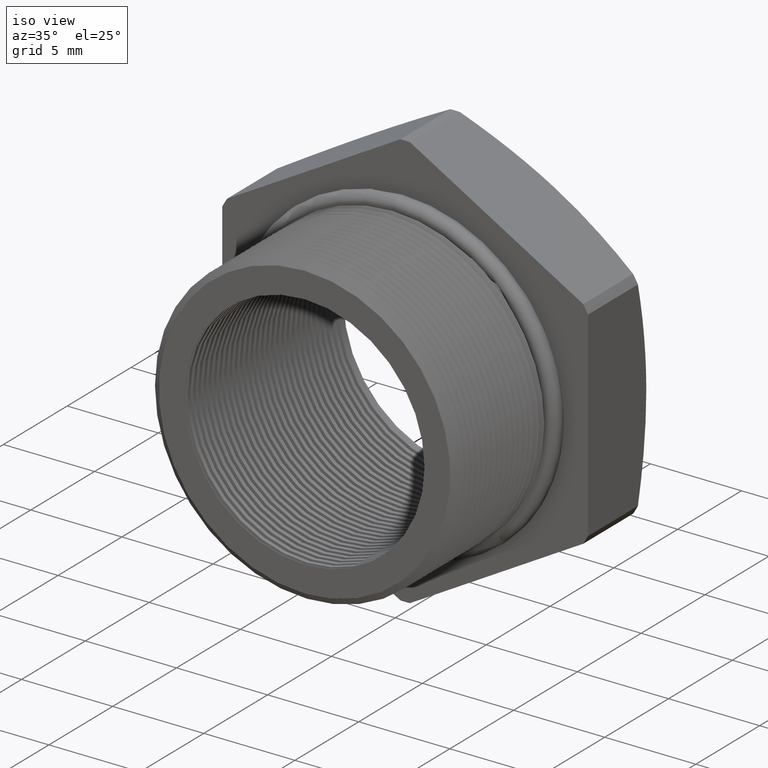
[diagram: clean part render]
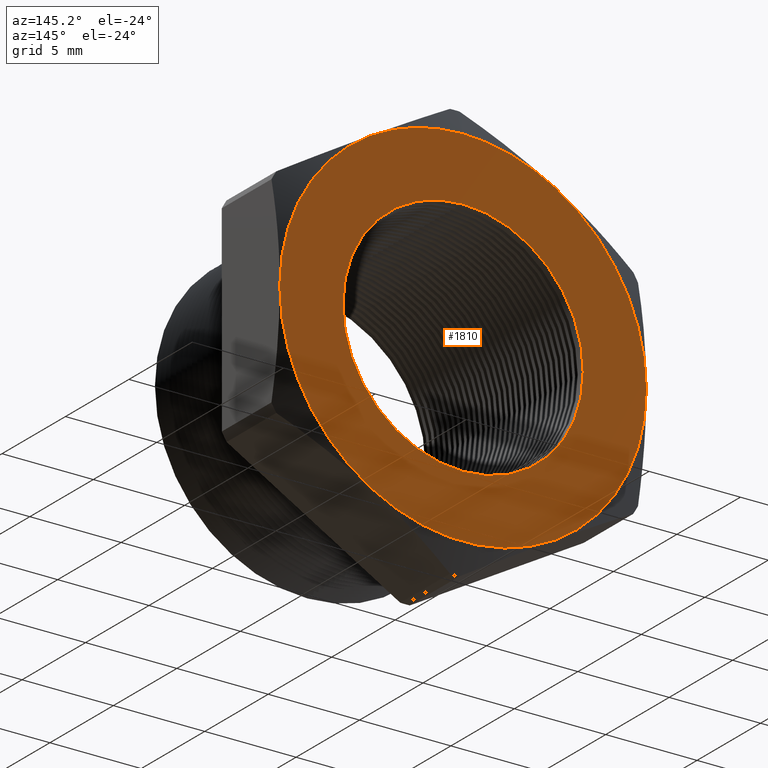
[diagram: tour spotlight — one face highlighted and labeled with its STEP entity id]
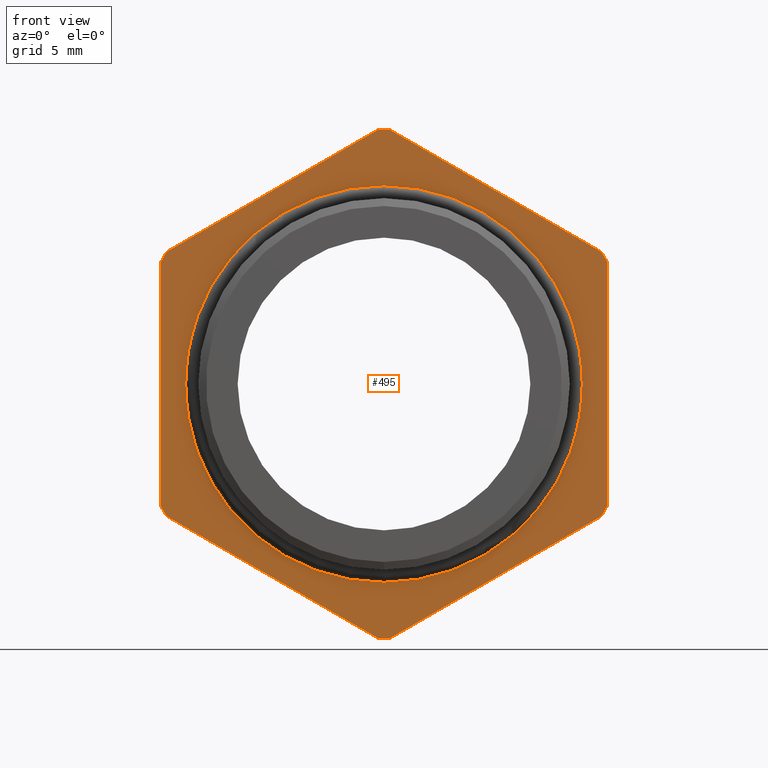
[diagram: tour spotlight — one face highlighted and labeled with its STEP entity id]
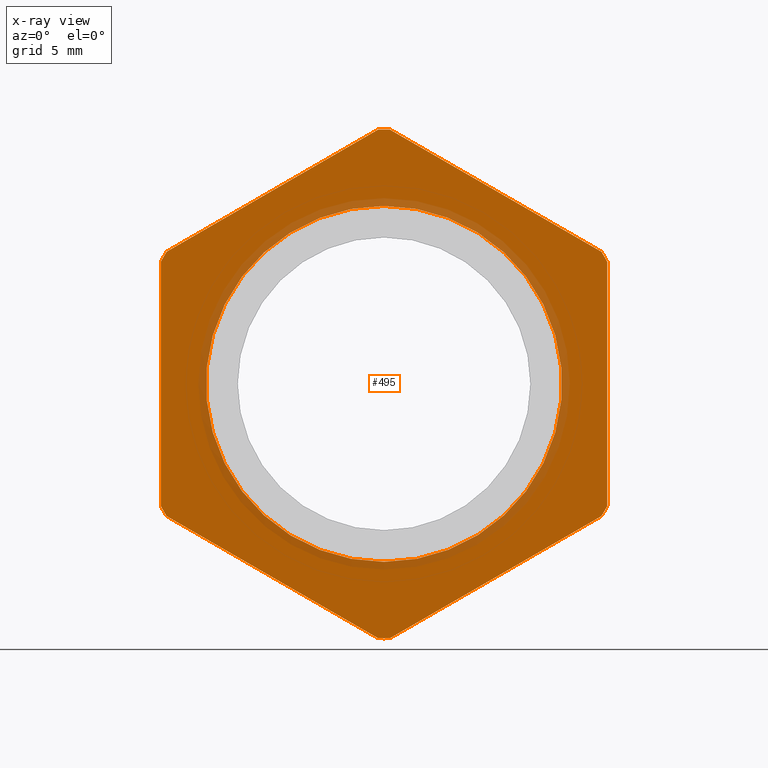
[diagram: x-ray of the same camera — body ghosted, this tour face saturated]
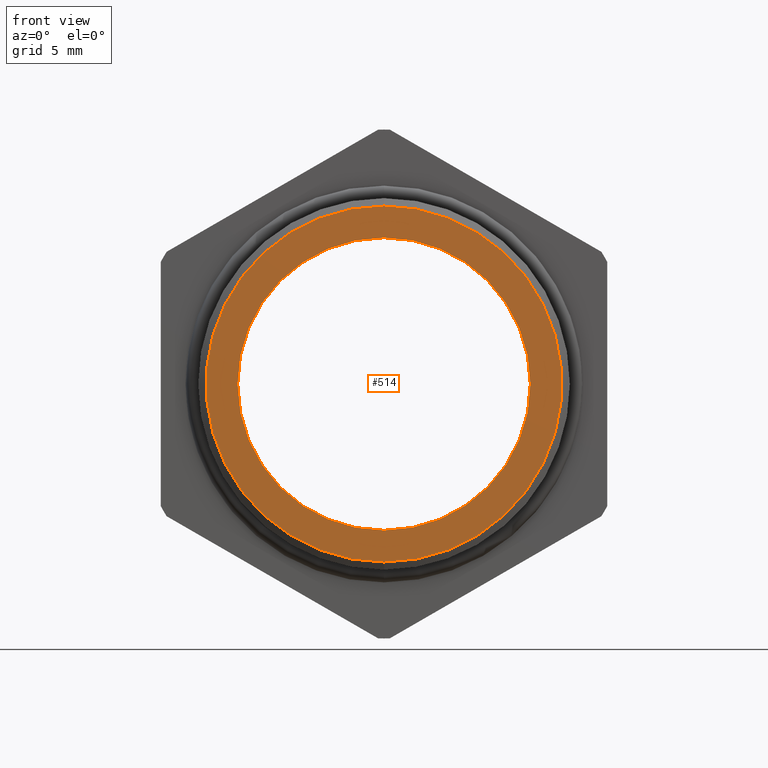
[diagram: tour spotlight — one face highlighted and labeled with its STEP entity id]
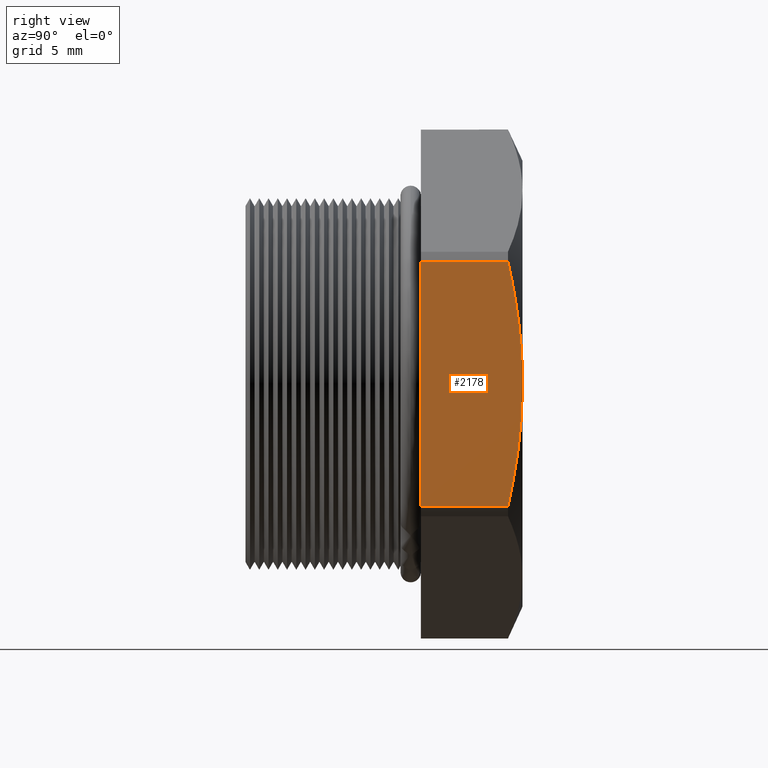
[diagram: tour spotlight — one face highlighted and labeled with its STEP entity id]
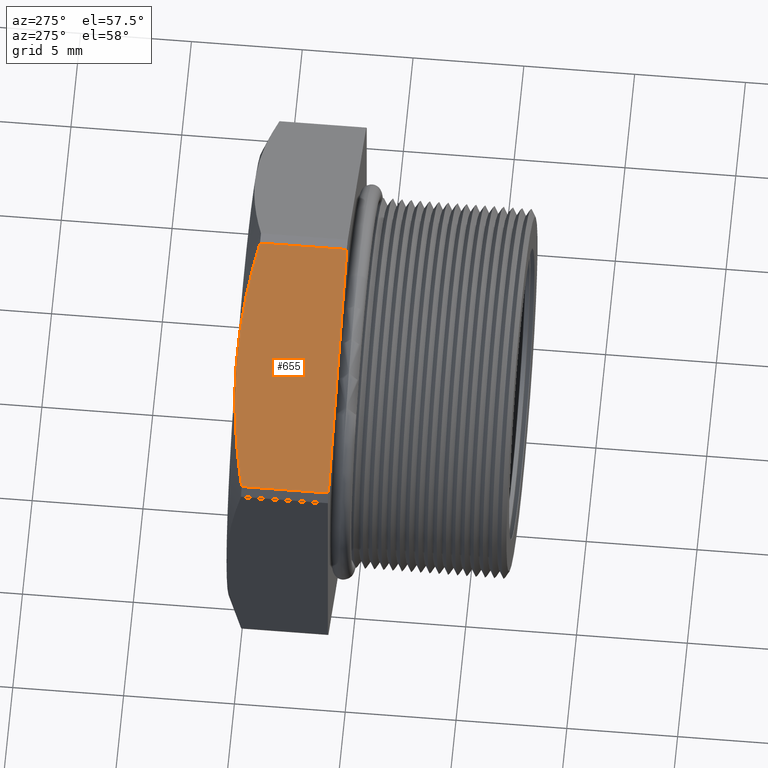
[diagram: tour spotlight — one face highlighted and labeled with its STEP entity id]
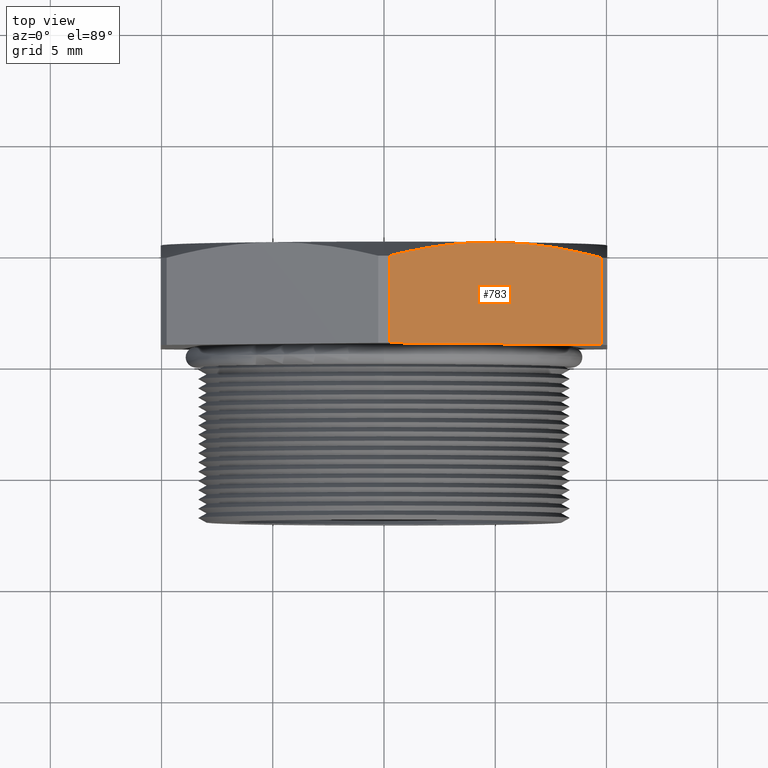
[diagram: tour spotlight — one face highlighted and labeled with its STEP entity id]
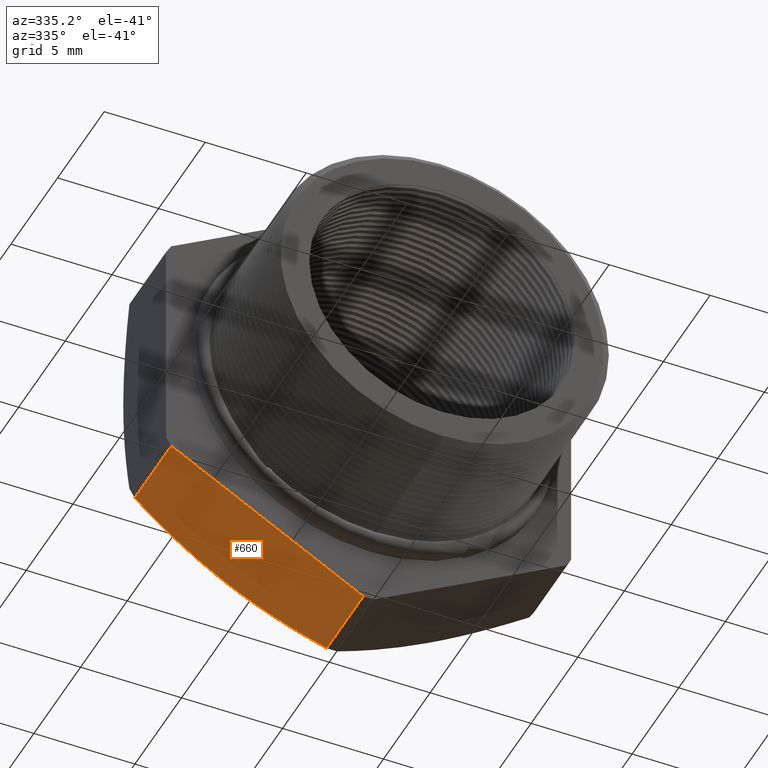
[diagram: tour spotlight — one face highlighted and labeled with its STEP entity id]
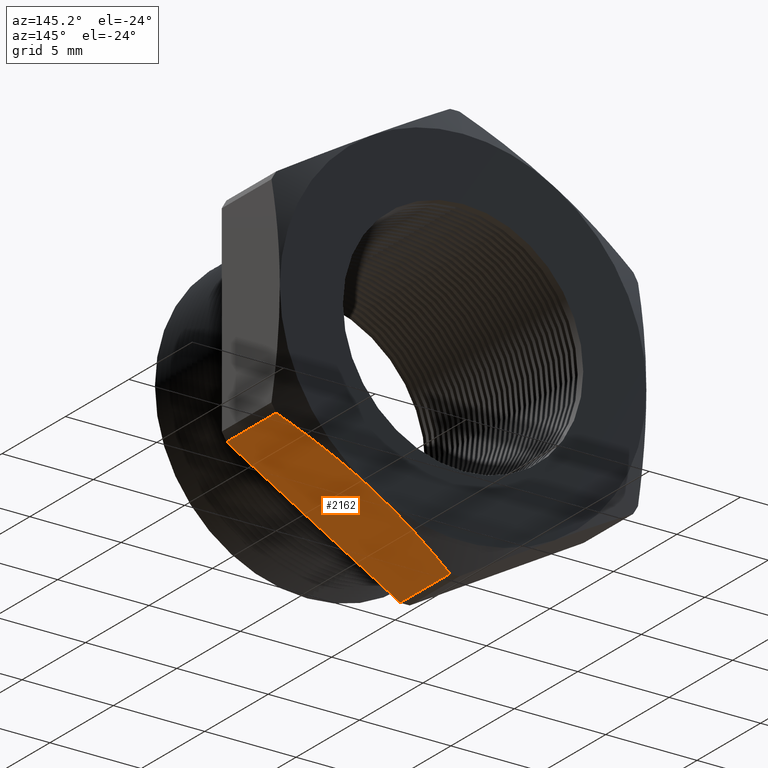
[diagram: tour spotlight — one face highlighted and labeled with its STEP entity id]
A machine part: a face-by-face anatomy tour. The part has 313 B-rep faces; the first image is the clean iso view, then the 8 largest visible faces are spotlighted one at a time (largest first), each with its STEP entity span.

Face 1 — auxiliary view, entity #1810. In plain terms, the highlighted planar face has unit normal (0, 1, 0).
Definition (entity closure, byte-faithful):
#715 = EDGE_CURVE ( 'NONE', #716, #1976, #4110, .T. ) ;
#716 = VERTEX_POINT ( 'NONE', #4105 ) ;
#717 = ORIENTED_EDGE ( 'NONE', *, *, #1975, .T. ) ;
#718 = ORIENTED_EDGE ( 'NONE', *, *, #719, .T. ) ;
#719 = EDGE_CURVE ( 'NONE', #1977, #720, #4104, .T. ) ;
#720 = VERTEX_POINT ( 'NONE', #4099 ) ;
#721 = ORIENTED_EDGE ( 'NONE', *, *, #722, .T. ) ;
#722 = EDGE_CURVE ( 'NONE', #720, #723, #4097, .T. ) ;
#723 = VERTEX_POINT ( 'NONE', #4098 ) ;
#724 = ORIENTED_EDGE ( 'NONE', *, *, #725, .T. ) ;
#725 = EDGE_CURVE ( 'NONE', #723, #726, #4092, .T. ) ;
#726 = VERTEX_POINT ( 'NONE', #4151 ) ;
#727 = ORIENTED_EDGE ( 'NONE', *, *, #728, .T. ) ;
#728 = EDGE_CURVE ( 'NONE', #726, #729, #4150, .T. ) ;
#729 = VERTEX_POINT ( 'NONE', #4145 ) ;
#766 = ORIENTED_EDGE ( 'NONE', *, *, #767, .T. ) ;
#767 = EDGE_CURVE ( 'NONE', #729, #716, #4197, .T. ) ;
#1491 = EDGE_CURVE ( 'NONE', #1492, #1493, #5423, .T. ) ;
#1492 = VERTEX_POINT ( 'NONE', #5414 ) ;
#1493 = VERTEX_POINT ( 'NONE', #5413 ) ;
#1810 = ADVANCED_FACE ( 'NONE', ( #5963, #5962 ), #5969, .T. ) ;
#1811 = EDGE_LOOP ( 'NONE', ( #1812, #1814 ) ) ;
#1812 = ORIENTED_EDGE ( 'NONE', *, *, #1813, .T. ) ;
#1813 = EDGE_CURVE ( 'NONE', #1493, #1492, #6019, .T. ) ;
#1814 = ORIENTED_EDGE ( 'NONE', *, *, #1491, .T. ) ;
#1815 = EDGE_LOOP ( 'NONE', ( #1816, #717, #718, #721, #724, #727, #766 ) ) ;
#1816 = ORIENTED_EDGE ( 'NONE', *, *, #715, .T. ) ;
#1975 = EDGE_CURVE ( 'NONE', #1976, #1977, #6287, .T. ) ;
#1976 = VERTEX_POINT ( 'NONE', #6338 ) ;
#1977 = VERTEX_POINT ( 'NONE', #6337 ) ;
#4089 = DIRECTION ( 'NONE',  ( 0.0000000000000000000, 1.000000000000000000, 0.0000000000000000000 ) ) ;
#4090 = CARTESIAN_POINT ( 'NONE',  ( 0.0000000000000000000, 0.4075548905829479200, 0.0000000000000000000 ) ) ;
#4091 = AXIS2_PLACEMENT_3D ( 'NONE', #4090, #4089, #4152 ) ;
#4092 = CIRCLE ( 'NONE', #4091, 0.3949999999999999600 ) ;
#4093 = DIRECTION ( 'NONE',  ( 0.0000000000000000000, 0.0000000000000000000, 1.000000000000000000 ) ) ;
#4094 = DIRECTION ( 'NONE',  ( 0.0000000000000000000, 1.000000000000000000, 0.0000000000000000000 ) ) ;
#4095 = CARTESIAN_POINT ( 'NONE',  ( 0.0000000000000000000, 0.4075548905829479200, 0.0000000000000000000 ) ) ;
#4096 = AXIS2_PLACEMENT_3D ( 'NONE', #4095, #4094, #4093 ) ;
#4097 = CIRCLE ( 'NONE', #4096, 0.3949999999999999600 ) ;
#4098 = CARTESIAN_POINT ( 'NONE',  ( 0.1975000000000000100, 0.4075548905829479200, -0.3420800344948533600 ) ) ;
#4099 = CARTESIAN_POINT ( 'NONE',  ( 0.3949999999999999600, 0.4075548905829479200, 1.182924880895400300E-016 ) ) ;
#4100 = DIRECTION ( 'NONE',  ( 0.0000000000000000000, 0.0000000000000000000, 1.000000000000000000 ) ) ;
#4101 = DIRECTION ( 'NONE',  ( 0.0000000000000000000, 1.000000000000000000, 0.0000000000000000000 ) ) ;
#4102 = CARTESIAN_POINT ( 'NONE',  ( 0.0000000000000000000, 0.4075548905829479200, 0.0000000000000000000 ) ) ;
#4103 = AXIS2_PLACEMENT_3D ( 'NONE', #4102, #4101, #4100 ) ;
#4104 = CIRCLE ( 'NONE', #4103, 0.3949999999999999600 ) ;
#4105 = CARTESIAN_POINT ( 'NONE',  ( -0.1975000000000000100, 0.4075548905829479200, 0.3420800344948533600 ) ) ;
#4106 = DIRECTION ( 'NONE',  ( 0.0000000000000000000, 0.0000000000000000000, 1.000000000000000000 ) ) ;
#4107 = DIRECTION ( 'NONE',  ( 0.0000000000000000000, 1.000000000000000000, 0.0000000000000000000 ) ) ;
#4108 = CARTESIAN_POINT ( 'NONE',  ( 0.0000000000000000000, 0.4075548905829479200, 0.0000000000000000000 ) ) ;
#4109 = AXIS2_PLACEMENT_3D ( 'NONE', #4108, #4107, #4106 ) ;
#4110 = CIRCLE ( 'NONE', #4109, 0.3949999999999999600 ) ;
#4145 = CARTESIAN_POINT ( 'NONE',  ( -0.3949999999999999600, 0.4075548905829479200, 0.0000000000000000000 ) ) ;
#4146 = DIRECTION ( 'NONE',  ( 0.0000000000000000000, 0.0000000000000000000, 1.000000000000000000 ) ) ;
#4147 = DIRECTION ( 'NONE',  ( 0.0000000000000000000, 1.000000000000000000, 0.0000000000000000000 ) ) ;
#4148 = CARTESIAN_POINT ( 'NONE',  ( 0.0000000000000000000, 0.4075548905829479200, 0.0000000000000000000 ) ) ;
#4149 = AXIS2_PLACEMENT_3D ( 'NONE', #4148, #4147, #4146 ) ;
#4150 = CIRCLE ( 'NONE', #4149, 0.3949999999999999600 ) ;
#4151 = CARTESIAN_POINT ( 'NONE',  ( -0.1975000000000000900, 0.4075548905829479200, -0.3420800344948533000 ) ) ;
#4152 = DIRECTION ( 'NONE',  ( 0.0000000000000000000, 0.0000000000000000000, 1.000000000000000000 ) ) ;
#4193 = DIRECTION ( 'NONE',  ( 0.0000000000000000000, 0.0000000000000000000, 1.000000000000000000 ) ) ;
#4194 = DIRECTION ( 'NONE',  ( 0.0000000000000000000, 1.000000000000000000, 0.0000000000000000000 ) ) ;
#4195 = CARTESIAN_POINT ( 'NONE',  ( 0.0000000000000000000, 0.4075548905829479200, 0.0000000000000000000 ) ) ;
#4196 = AXIS2_PLACEMENT_3D ( 'NONE', #4195, #4194, #4193 ) ;
#4197 = CIRCLE ( 'NONE', #4196, 0.3949999999999999600 ) ;
#5413 = CARTESIAN_POINT ( 'NONE',  ( 0.0000000000000000000, 0.4075548905829479200, -0.2589880461203001900 ) ) ;
#5414 = CARTESIAN_POINT ( 'NONE',  ( 3.171688816986526800E-017, 0.4075548905829479200, 0.2589880461203001900 ) ) ;
#5415 = DIRECTION ( 'NONE',  ( 0.0000000000000000000, 0.0000000000000000000, -1.000000000000000000 ) ) ;
#5416 = DIRECTION ( 'NONE',  ( -0.0000000000000000000, -1.000000000000000000, -0.0000000000000000000 ) ) ;
#5417 = CARTESIAN_POINT ( 'NONE',  ( 0.0000000000000000000, 0.4075548905829479200, 0.0000000000000000000 ) ) ;
#5418 = AXIS2_PLACEMENT_3D ( 'NONE', #5417, #5416, #5415 ) ;
#5423 = CIRCLE ( 'NONE', #5418, 0.2589880461203001900 ) ;
#5962 = FACE_OUTER_BOUND ( 'NONE', #1815, .T. ) ;
#5963 = FACE_BOUND ( 'NONE', #1811, .T. ) ;
#5964 = AXIS2_PLACEMENT_3D ( 'NONE', #6023, #6022, #6021 ) ;
#5969 = PLANE ( 'NONE',  #5964 ) ;
#6016 = DIRECTION ( 'NONE',  ( 0.0000000000000000000, 0.0000000000000000000, -1.000000000000000000 ) ) ;
#6017 = DIRECTION ( 'NONE',  ( -0.0000000000000000000, -1.000000000000000000, -0.0000000000000000000 ) ) ;
#6018 = AXIS2_PLACEMENT_3D ( 'NONE', #6024, #6017, #6016 ) ;
#6019 = CIRCLE ( 'NONE', #6018, 0.2589880461203001900 ) ;
#6021 = DIRECTION ( 'NONE',  ( 0.0000000000000000000, -0.0000000000000000000, 1.000000000000000000 ) ) ;
#6022 = DIRECTION ( 'NONE',  ( 0.0000000000000000000, 1.000000000000000000, 0.0000000000000000000 ) ) ;
#6023 = CARTESIAN_POINT ( 'NONE',  ( 0.4502999999999999800, 0.4075548905829479200, 0.0000000000000000000 ) ) ;
#6024 = CARTESIAN_POINT ( 'NONE',  ( 0.0000000000000000000, 0.4075548905829479200, 0.0000000000000000000 ) ) ;
#6280 = CARTESIAN_POINT ( 'NONE',  ( 0.0000000000000000000, 0.4075548905829479200, 0.0000000000000000000 ) ) ;
#6281 = AXIS2_PLACEMENT_3D ( 'NONE', #6280, #6340, #6339 ) ;
#6287 = CIRCLE ( 'NONE', #6281, 0.3949999999999999600 ) ;
#6337 = CARTESIAN_POINT ( 'NONE',  ( 0.1975000000000001800, 0.4075548905829479700, 0.3420800344948533000 ) ) ;
#6338 = CARTESIAN_POINT ( 'NONE',  ( 0.0000000000000000000, 0.4075548905829479200, 0.3949999999999999600 ) ) ;
#6339 = DIRECTION ( 'NONE',  ( 0.0000000000000000000, 0.0000000000000000000, 1.000000000000000000 ) ) ;
#6340 = DIRECTION ( 'NONE',  ( 0.0000000000000000000, 1.000000000000000000, 0.0000000000000000000 ) ) ;

Face 2 — front view, entity #495. An x-ray twin of the same camera follows (body ghosted, this face saturated) — the face is partly hidden behind the body. In plain terms, the highlighted planar face has unit normal (0, -1, -0).
Definition (entity closure, byte-faithful):
#401 = EDGE_CURVE ( 'NONE', #763, #706, #3583, .T. ) ;
#473 = EDGE_CURVE ( 'NONE', #1476, #1475, #3733, .T. ) ;
#486 = ORIENTED_EDGE ( 'NONE', *, *, #765, .T. ) ;
#488 = ORIENTED_EDGE ( 'NONE', *, *, #473, .F. ) ;
#489 = ORIENTED_EDGE ( 'NONE', *, *, #1421, .F. ) ;
#491 = EDGE_LOOP ( 'NONE', ( #489, #488 ) ) ;
#493 = EDGE_LOOP ( 'NONE', ( #486, #512, #516, #502, #506, #511, #507, #504, #505, #508, #532, #531, #530 ) ) ;
#495 = ADVANCED_FACE ( 'NONE', ( #3754, #3753 ), #3752, .T. ) ;
#502 = ORIENTED_EDGE ( 'NONE', *, *, #658, .T. ) ;
#504 = ORIENTED_EDGE ( 'NONE', *, *, #661, .T. ) ;
#505 = ORIENTED_EDGE ( 'NONE', *, *, #814, .T. ) ;
#506 = ORIENTED_EDGE ( 'NONE', *, *, #782, .T. ) ;
#507 = ORIENTED_EDGE ( 'NONE', *, *, #797, .T. ) ;
#508 = ORIENTED_EDGE ( 'NONE', *, *, #2165, .T. ) ;
#511 = ORIENTED_EDGE ( 'NONE', *, *, #693, .T. ) ;
#512 = ORIENTED_EDGE ( 'NONE', *, *, #401, .T. ) ;
#516 = ORIENTED_EDGE ( 'NONE', *, *, #751, .T. ) ;
#530 = ORIENTED_EDGE ( 'NONE', *, *, #2181, .T. ) ;
#531 = ORIENTED_EDGE ( 'NONE', *, *, #747, .T. ) ;
#532 = ORIENTED_EDGE ( 'NONE', *, *, #1883, .T. ) ;
#658 = EDGE_CURVE ( 'NONE', #713, #802, #3966, .T. ) ;
#661 = EDGE_CURVE ( 'NONE', #795, #804, #4027, .T. ) ;
#693 = EDGE_CURVE ( 'NONE', #780, #788, #4073, .T. ) ;
#706 = VERTEX_POINT ( 'NONE', #4060 ) ;
#713 = VERTEX_POINT ( 'NONE', #4111 ) ;
#745 = VERTEX_POINT ( 'NONE', #4182 ) ;
#747 = EDGE_CURVE ( 'NONE', #1832, #745, #4181, .T. ) ;
#751 = EDGE_CURVE ( 'NONE', #706, #713, #4174, .T. ) ;
#756 = VERTEX_POINT ( 'NONE', #4155 ) ;
#763 = VERTEX_POINT ( 'NONE', #4203 ) ;
#765 = EDGE_CURVE ( 'NONE', #756, #763, #4202, .T. ) ;
#780 = VERTEX_POINT ( 'NONE', #4219 ) ;
#782 = EDGE_CURVE ( 'NONE', #802, #780, #4218, .T. ) ;
#788 = VERTEX_POINT ( 'NONE', #4265 ) ;
#795 = VERTEX_POINT ( 'NONE', #4248 ) ;
#797 = EDGE_CURVE ( 'NONE', #788, #795, #4246, .T. ) ;
#802 = VERTEX_POINT ( 'NONE', #4292 ) ;
#804 = VERTEX_POINT ( 'NONE', #4287 ) ;
#812 = VERTEX_POINT ( 'NONE', #4275 ) ;
#814 = EDGE_CURVE ( 'NONE', #804, #812, #4274, .T. ) ;
#1421 = EDGE_CURVE ( 'NONE', #1475, #1476, #5302, .T. ) ;
#1475 = VERTEX_POINT ( 'NONE', #5390 ) ;
#1476 = VERTEX_POINT ( 'NONE', #5384 ) ;
#1832 = VERTEX_POINT ( 'NONE', #6052 ) ;
#1883 = EDGE_CURVE ( 'NONE', #1884, #1832, #6139, .T. ) ;
#1884 = VERTEX_POINT ( 'NONE', #6134 ) ;
#2165 = EDGE_CURVE ( 'NONE', #812, #1884, #6663, .T. ) ;
#2181 = EDGE_CURVE ( 'NONE', #745, #756, #6688, .T. ) ;
#3507 = DIRECTION ( 'NONE',  ( 0.0000000000000000000, 0.0000000000000000000, -1.000000000000000000 ) ) ;
#3580 = DIRECTION ( 'NONE',  ( -2.994746533912406200E-016, 0.0000000000000000000, 1.000000000000000000 ) ) ;
#3581 = VECTOR ( 'NONE', #3580, 39.37007874015748100 ) ;
#3582 = CARTESIAN_POINT ( 'NONE',  ( 0.3949999999999999600, 0.2275548905829479800, 2.395797227129924000E-017 ) ) ;
#3583 = LINE ( 'NONE', #3582, #3581 ) ;
#3729 = DIRECTION ( 'NONE',  ( 0.0000000000000000000, 0.0000000000000000000, -1.000000000000000000 ) ) ;
#3730 = DIRECTION ( 'NONE',  ( -0.0000000000000000000, -1.000000000000000000, -0.0000000000000000000 ) ) ;
#3731 = CARTESIAN_POINT ( 'NONE',  ( 0.0000000000000000000, 0.2275548905829479800, 0.0000000000000000000 ) ) ;
#3732 = AXIS2_PLACEMENT_3D ( 'NONE', #3731, #3730, #3729 ) ;
#3733 = CIRCLE ( 'NONE', #3732, 0.3150000000000000000 ) ;
#3746 = DIRECTION ( 'NONE',  ( 0.0000000000000000000, 0.0000000000000000000, -1.000000000000000000 ) ) ;
#3747 = DIRECTION ( 'NONE',  ( 0.0000000000000000000, -1.000000000000000000, -0.0000000000000000000 ) ) ;
#3748 = AXIS2_PLACEMENT_3D ( 'NONE', #3751, #3747, #3746 ) ;
#3751 = CARTESIAN_POINT ( 'NONE',  ( 0.3150000000000000000, 0.2275548905829479800, 0.0000000000000000000 ) ) ;
#3752 = PLANE ( 'NONE',  #3748 ) ;
#3753 = FACE_OUTER_BOUND ( 'NONE', #493, .T. ) ;
#3754 = FACE_BOUND ( 'NONE', #491, .T. ) ;
#3965 = CARTESIAN_POINT ( 'NONE',  ( 0.4337500000000000200, 0.2275548905829479800, 0.2056810333988042200 ) ) ;
#3966 = LINE ( 'NONE', #3965, #4030 ) ;
#4019 = DIRECTION ( 'NONE',  ( 0.0000000000000000000, 0.0000000000000000000, -1.000000000000000000 ) ) ;
#4020 = VECTOR ( 'NONE', #4019, 39.37007874015748100 ) ;
#4021 = CARTESIAN_POINT ( 'NONE',  ( -0.3949999999999999600, 0.2275548905829479800, 0.0000000000000000000 ) ) ;
#4027 = LINE ( 'NONE', #4021, #4020 ) ;
#4029 = DIRECTION ( 'NONE',  ( -0.8660254037844386000, 0.0000000000000000000, 0.5000000000000002200 ) ) ;
#4030 = VECTOR ( 'NONE', #4029, 39.37007874015747400 ) ;
#4060 = CARTESIAN_POINT ( 'NONE',  ( 0.3949999999999999100, 0.2275548905829479800, 0.2162061284977834200 ) ) ;
#4070 = DIRECTION ( 'NONE',  ( -0.8660254037844386000, 0.0000000000000000000, -0.4999999999999998300 ) ) ;
#4071 = VECTOR ( 'NONE', #4070, 39.37007874015748900 ) ;
#4072 = CARTESIAN_POINT ( 'NONE',  ( 0.03875000000000002700, 0.2275548905829479800, 0.4784790355909024400 ) ) ;
#4073 = LINE ( 'NONE', #4072, #4071 ) ;
#4111 = CARTESIAN_POINT ( 'NONE',  ( 0.3847399997329628600, 0.2275548905829479800, 0.2339769702459617900 ) ) ;
#4155 = CARTESIAN_POINT ( 'NONE',  ( 0.3847399997329628000, 0.2275548905829479800, -0.2339769702459618100 ) ) ;
#4166 = DIRECTION ( 'NONE',  ( 0.0000000000000000000, 0.0000000000000000000, -1.000000000000000000 ) ) ;
#4167 = DIRECTION ( 'NONE',  ( -0.0000000000000000000, -1.000000000000000000, -0.0000000000000000000 ) ) ;
#4168 = CARTESIAN_POINT ( 'NONE',  ( 0.0000000000000000000, 0.2275548905829479800, 0.0000000000000000000 ) ) ;
#4169 = AXIS2_PLACEMENT_3D ( 'NONE', #4168, #4167, #4166 ) ;
#4174 = CIRCLE ( 'NONE', #4169, 0.4502999999999999800 ) ;
#4177 = DIRECTION ( 'NONE',  ( 0.0000000000000000000, 0.0000000000000000000, -1.000000000000000000 ) ) ;
#4178 = DIRECTION ( 'NONE',  ( -0.0000000000000000000, -1.000000000000000000, -0.0000000000000000000 ) ) ;
#4179 = CARTESIAN_POINT ( 'NONE',  ( 0.0000000000000000000, 0.2275548905829479800, 0.0000000000000000000 ) ) ;
#4180 = AXIS2_PLACEMENT_3D ( 'NONE', #4179, #4178, #4177 ) ;
#4181 = CIRCLE ( 'NONE', #4180, 0.4502999999999999800 ) ;
#4182 = CARTESIAN_POINT ( 'NONE',  ( 0.01026000026703718400, 0.2275548905829479800, -0.4501830987437449000 ) ) ;
#4198 = DIRECTION ( 'NONE',  ( 0.0000000000000000000, 0.0000000000000000000, -1.000000000000000000 ) ) ;
#4199 = DIRECTION ( 'NONE',  ( -0.0000000000000000000, -1.000000000000000000, -0.0000000000000000000 ) ) ;
#4200 = CARTESIAN_POINT ( 'NONE',  ( 0.0000000000000000000, 0.2275548905829479800, 0.0000000000000000000 ) ) ;
#4201 = AXIS2_PLACEMENT_3D ( 'NONE', #4200, #4199, #4198 ) ;
#4202 = CIRCLE ( 'NONE', #4201, 0.4502999999999999800 ) ;
#4203 = CARTESIAN_POINT ( 'NONE',  ( 0.3950000000000000200, 0.2275548905829479800, -0.2162061284977832000 ) ) ;
#4214 = DIRECTION ( 'NONE',  ( 0.0000000000000000000, 0.0000000000000000000, -1.000000000000000000 ) ) ;
#4215 = DIRECTION ( 'NONE',  ( -0.0000000000000000000, -1.000000000000000000, -0.0000000000000000000 ) ) ;
#4216 = CARTESIAN_POINT ( 'NONE',  ( 0.0000000000000000000, 0.2275548905829479800, 0.0000000000000000000 ) ) ;
#4217 = AXIS2_PLACEMENT_3D ( 'NONE', #4216, #4215, #4214 ) ;
#4218 = CIRCLE ( 'NONE', #4217, 0.4502999999999999800 ) ;
#4219 = CARTESIAN_POINT ( 'NONE',  ( -0.01026000026703719400, 0.2275548905829479800, 0.4501830987437449000 ) ) ;
#4243 = DIRECTION ( 'NONE',  ( -0.0000000000000000000, -1.000000000000000000, -0.0000000000000000000 ) ) ;
#4244 = CARTESIAN_POINT ( 'NONE',  ( 0.0000000000000000000, 0.2275548905829479800, 0.0000000000000000000 ) ) ;
#4245 = AXIS2_PLACEMENT_3D ( 'NONE', #4244, #4243, #3507 ) ;
#4246 = CIRCLE ( 'NONE', #4245, 0.4502999999999999800 ) ;
#4248 = CARTESIAN_POINT ( 'NONE',  ( -0.3949999999999999600, 0.2275548905829479800, 0.2162061284977833100 ) ) ;
#4265 = CARTESIAN_POINT ( 'NONE',  ( -0.3847399997329628000, 0.2275548905829479800, 0.2339769702459618100 ) ) ;
#4273 = CARTESIAN_POINT ( 'NONE',  ( 0.0000000000000000000, 0.2275548905829479800, 0.0000000000000000000 ) ) ;
#4274 = CIRCLE ( 'NONE', #4335, 0.4502999999999999800 ) ;
#4275 = CARTESIAN_POINT ( 'NONE',  ( -0.3847399997329630200, 0.2275548905829479800, -0.2339769702459614800 ) ) ;
#4287 = CARTESIAN_POINT ( 'NONE',  ( -0.3949999999999999600, 0.2275548905829479800, -0.2162061284977833100 ) ) ;
#4292 = CARTESIAN_POINT ( 'NONE',  ( 0.01026000026703743400, 0.2275548905829479800, 0.4501830987437449600 ) ) ;
#4333 = DIRECTION ( 'NONE',  ( 0.0000000000000000000, 0.0000000000000000000, -1.000000000000000000 ) ) ;
#4334 = DIRECTION ( 'NONE',  ( -0.0000000000000000000, -1.000000000000000000, -0.0000000000000000000 ) ) ;
#4335 = AXIS2_PLACEMENT_3D ( 'NONE', #4273, #4334, #4333 ) ;
#5293 = DIRECTION ( 'NONE',  ( 0.0000000000000000000, 0.0000000000000000000, -1.000000000000000000 ) ) ;
#5294 = DIRECTION ( 'NONE',  ( -0.0000000000000000000, -1.000000000000000000, -0.0000000000000000000 ) ) ;
#5295 = CARTESIAN_POINT ( 'NONE',  ( 0.0000000000000000000, 0.2275548905829479800, 0.0000000000000000000 ) ) ;
#5296 = AXIS2_PLACEMENT_3D ( 'NONE', #5295, #5294, #5293 ) ;
#5302 = CIRCLE ( 'NONE', #5296, 0.3150000000000000000 ) ;
#5384 = CARTESIAN_POINT ( 'NONE',  ( 3.857637417314162700E-017, 0.2275548905829479800, 0.3150000000000000000 ) ) ;
#5390 = CARTESIAN_POINT ( 'NONE',  ( 0.0000000000000000000, 0.2275548905829479800, -0.3150000000000000000 ) ) ;
#6052 = CARTESIAN_POINT ( 'NONE',  ( 0.0000000000000000000, 0.2275548905829479800, -0.4502999999999999800 ) ) ;
#6134 = CARTESIAN_POINT ( 'NONE',  ( -0.01026000026703716000, 0.2275548905829479800, -0.4501830987437449600 ) ) ;
#6135 = DIRECTION ( 'NONE',  ( 0.0000000000000000000, 0.0000000000000000000, -1.000000000000000000 ) ) ;
#6136 = DIRECTION ( 'NONE',  ( -0.0000000000000000000, -1.000000000000000000, -0.0000000000000000000 ) ) ;
#6137 = CARTESIAN_POINT ( 'NONE',  ( 0.0000000000000000000, 0.2275548905829479800, 0.0000000000000000000 ) ) ;
#6138 = AXIS2_PLACEMENT_3D ( 'NONE', #6137, #6136, #6135 ) ;
#6139 = CIRCLE ( 'NONE', #6138, 0.4502999999999999800 ) ;
#6660 = DIRECTION ( 'NONE',  ( 0.8660254037844386000, 0.0000000000000000000, -0.5000000000000002200 ) ) ;
#6661 = VECTOR ( 'NONE', #6660, 39.37007874015747400 ) ;
#6662 = CARTESIAN_POINT ( 'NONE',  ( 0.03874999999999989600, 0.2275548905829479800, -0.4784790355909022700 ) ) ;
#6663 = LINE ( 'NONE', #6662, #6661 ) ;
#6685 = DIRECTION ( 'NONE',  ( 0.8660254037844386000, 0.0000000000000000000, 0.4999999999999998300 ) ) ;
#6686 = VECTOR ( 'NONE', #6685, 39.37007874015748900 ) ;
#6687 = CARTESIAN_POINT ( 'NONE',  ( 0.4337499999999999700, 0.2275548905829479800, -0.2056810333988043100 ) ) ;
#6688 = LINE ( 'NONE', #6687, #6686 ) ;

Face 3 — front view, entity #514. In plain terms, the highlighted planar face has unit normal (0, -1, -0).
Definition (entity closure, byte-faithful):
#233 = VERTEX_POINT ( 'NONE', #3229 ) ;
#235 = EDGE_CURVE ( 'NONE', #233, #236, #3228, .T. ) ;
#236 = VERTEX_POINT ( 'NONE', #3286 ) ;
#513 = EDGE_LOOP ( 'NONE', ( #515, #550 ) ) ;
#514 = ADVANCED_FACE ( 'NONE', ( #3801, #3796 ), #3795, .T. ) ;
#515 = ORIENTED_EDGE ( 'NONE', *, *, #544, .F. ) ;
#544 = EDGE_CURVE ( 'NONE', #236, #233, #3865, .T. ) ;
#545 = EDGE_CURVE ( 'NONE', #1424, #2778, #3860, .T. ) ;
#548 = ORIENTED_EDGE ( 'NONE', *, *, #1423, .F. ) ;
#550 = ORIENTED_EDGE ( 'NONE', *, *, #235, .F. ) ;
#552 = ORIENTED_EDGE ( 'NONE', *, *, #545, .F. ) ;
#553 = EDGE_LOOP ( 'NONE', ( #552, #548 ) ) ;
#1423 = EDGE_CURVE ( 'NONE', #2778, #1424, #5292, .T. ) ;
#1424 = VERTEX_POINT ( 'NONE', #5287 ) ;
#2778 = VERTEX_POINT ( 'NONE', #7760 ) ;
#3224 = DIRECTION ( 'NONE',  ( 0.0000000000000000000, 0.0000000000000000000, -1.000000000000000000 ) ) ;
#3225 = DIRECTION ( 'NONE',  ( 0.0000000000000000000, 1.000000000000000000, 0.0000000000000000000 ) ) ;
#3226 = CARTESIAN_POINT ( 'NONE',  ( 0.0000000000000000000, -0.08244510941705197900, 0.0000000000000000000 ) ) ;
#3227 = AXIS2_PLACEMENT_3D ( 'NONE', #3226, #3225, #3224 ) ;
#3228 = CIRCLE ( 'NONE', #3227, 0.3150000000000000000 ) ;
#3229 = CARTESIAN_POINT ( 'NONE',  ( 3.857637417314162700E-017, -0.08244510941705197900, -0.3150000000000000000 ) ) ;
#3286 = CARTESIAN_POINT ( 'NONE',  ( 0.0000000000000000000, -0.08244510941705197900, 0.3150000000000000000 ) ) ;
#3790 = DIRECTION ( 'NONE',  ( 0.0000000000000000000, 0.0000000000000000000, -1.000000000000000000 ) ) ;
#3791 = DIRECTION ( 'NONE',  ( 0.0000000000000000000, -1.000000000000000000, -0.0000000000000000000 ) ) ;
#3792 = AXIS2_PLACEMENT_3D ( 'NONE', #3794, #3791, #3790 ) ;
#3794 = CARTESIAN_POINT ( 'NONE',  ( 0.2589880461203001900, -0.08244510941705197900, 0.0000000000000000000 ) ) ;
#3795 = PLANE ( 'NONE',  #3792 ) ;
#3796 = FACE_BOUND ( 'NONE', #553, .T. ) ;
#3801 = FACE_OUTER_BOUND ( 'NONE', #513, .T. ) ;
#3856 = DIRECTION ( 'NONE',  ( 0.0000000000000000000, 0.0000000000000000000, -1.000000000000000000 ) ) ;
#3857 = DIRECTION ( 'NONE',  ( -0.0000000000000000000, -1.000000000000000000, -0.0000000000000000000 ) ) ;
#3858 = CARTESIAN_POINT ( 'NONE',  ( 0.0000000000000000000, -0.08244510941705197900, 0.0000000000000000000 ) ) ;
#3859 = AXIS2_PLACEMENT_3D ( 'NONE', #3858, #3857, #3856 ) ;
#3860 = CIRCLE ( 'NONE', #3859, 0.2589880461203001900 ) ;
#3861 = DIRECTION ( 'NONE',  ( 0.0000000000000000000, 0.0000000000000000000, -1.000000000000000000 ) ) ;
#3862 = DIRECTION ( 'NONE',  ( 0.0000000000000000000, 1.000000000000000000, 0.0000000000000000000 ) ) ;
#3863 = CARTESIAN_POINT ( 'NONE',  ( 0.0000000000000000000, -0.08244510941705197900, 0.0000000000000000000 ) ) ;
#3864 = AXIS2_PLACEMENT_3D ( 'NONE', #3863, #3862, #3861 ) ;
#3865 = CIRCLE ( 'NONE', #3864, 0.3150000000000000000 ) ;
#5287 = CARTESIAN_POINT ( 'NONE',  ( 0.0000000000000000000, -0.08244510941705197900, -0.2589880461203001900 ) ) ;
#5288 = DIRECTION ( 'NONE',  ( 0.0000000000000000000, 0.0000000000000000000, -1.000000000000000000 ) ) ;
#5289 = DIRECTION ( 'NONE',  ( -0.0000000000000000000, -1.000000000000000000, -0.0000000000000000000 ) ) ;
#5290 = CARTESIAN_POINT ( 'NONE',  ( 0.0000000000000000000, -0.08244510941705197900, 0.0000000000000000000 ) ) ;
#5291 = AXIS2_PLACEMENT_3D ( 'NONE', #5290, #5289, #5288 ) ;
#5292 = CIRCLE ( 'NONE', #5291, 0.2589880461203001900 ) ;
#7760 = CARTESIAN_POINT ( 'NONE',  ( 3.171688816986526800E-017, -0.08244510941705197900, 0.2589880461203001900 ) ) ;

Face 4 — right view, entity #2178. In plain terms, the highlighted planar face has unit normal (1, -0, 0).
Definition (entity closure, byte-faithful):
#400 = ORIENTED_EDGE ( 'NONE', *, *, #401, .F. ) ;
#401 = EDGE_CURVE ( 'NONE', #763, #706, #3583, .T. ) ;
#402 = ORIENTED_EDGE ( 'NONE', *, *, #705, .F. ) ;
#403 = EDGE_CURVE ( 'NONE', #720, #707, #3579, .T. ) ;
#705 = EDGE_CURVE ( 'NONE', #706, #707, #4064, .T. ) ;
#706 = VERTEX_POINT ( 'NONE', #4060 ) ;
#707 = VERTEX_POINT ( 'NONE', #4059 ) ;
#720 = VERTEX_POINT ( 'NONE', #4099 ) ;
#760 = VERTEX_POINT ( 'NONE', #4208 ) ;
#762 = EDGE_CURVE ( 'NONE', #760, #763, #4207, .T. ) ;
#763 = VERTEX_POINT ( 'NONE', #4203 ) ;
#2172 = EDGE_LOOP ( 'NONE', ( #2182, #2177, #2174, #402, #400 ) ) ;
#2174 = ORIENTED_EDGE ( 'NONE', *, *, #403, .T. ) ;
#2175 = EDGE_CURVE ( 'NONE', #760, #720, #6700, .T. ) ;
#2177 = ORIENTED_EDGE ( 'NONE', *, *, #2175, .T. ) ;
#2178 = ADVANCED_FACE ( 'NONE', ( #6701 ), #6699, .T. ) ;
#2182 = ORIENTED_EDGE ( 'NONE', *, *, #762, .F. ) ;
#3569 = CARTESIAN_POINT ( 'NONE',  ( 0.3949999999999999100, 0.3817680770869766300, 0.2162061284977834200 ) ) ;
#3570 = CARTESIAN_POINT ( 'NONE',  ( 0.3949999999999998000, 0.3857298768067958200, 0.1985109920498562300 ) ) ;
#3571 = CARTESIAN_POINT ( 'NONE',  ( 0.3949999999999999600, 0.3893461227504101400, 0.1806917436682701500 ) ) ;
#3572 = CARTESIAN_POINT ( 'NONE',  ( 0.3949999999999998000, 0.3957301704791825700, 0.1447485127295271300 ) ) ;
#3573 = CARTESIAN_POINT ( 'NONE',  ( 0.3949999999999999100, 0.3984980868305345600, 0.1265918630046164200 ) ) ;
#3574 = CARTESIAN_POINT ( 'NONE',  ( 0.3949999999999999100, 0.4052039938632857600, 0.07229510109108092100 ) ) ;
#3575 = CARTESIAN_POINT ( 'NONE',  ( 0.3949999999999999600, 0.4075548905829479700, 0.03612961083331654000 ) ) ;
#3576 = CARTESIAN_POINT ( 'NONE',  ( 0.3949999999999999600, 0.4075548905829479200, 1.182924880895400300E-016 ) ) ;
#3579 = B_SPLINE_CURVE_WITH_KNOTS ( 'NONE', 3,
 ( #3576, #3575, #3574, #3573, #3572, #3571, #3570, #3569 ),
 .UNSPECIFIED., .F., .F.,
 ( 4, 2, 2, 4 ),
 ( 0.01579929215039219100, 0.01856890246356216300, 0.01995370762014714700, 0.02133851277673213000 ),
 .UNSPECIFIED. ) ;
#3580 = DIRECTION ( 'NONE',  ( -2.994746533912406200E-016, 0.0000000000000000000, 1.000000000000000000 ) ) ;
#3581 = VECTOR ( 'NONE', #3580, 39.37007874015748100 ) ;
#3582 = CARTESIAN_POINT ( 'NONE',  ( 0.3949999999999999600, 0.2275548905829479800, 2.395797227129924000E-017 ) ) ;
#3583 = LINE ( 'NONE', #3582, #3581 ) ;
#4059 = CARTESIAN_POINT ( 'NONE',  ( 0.3949999999999999100, 0.3817680770869766300, 0.2162061284977834200 ) ) ;
#4060 = CARTESIAN_POINT ( 'NONE',  ( 0.3949999999999999100, 0.2275548905829479800, 0.2162061284977834200 ) ) ;
#4061 = DIRECTION ( 'NONE',  ( 0.0000000000000000000, 1.000000000000000000, 0.0000000000000000000 ) ) ;
#4062 = VECTOR ( 'NONE', #4061, 39.37007874015748100 ) ;
#4063 = CARTESIAN_POINT ( 'NONE',  ( 0.3949999999999999100, 0.0000000000000000000, 0.2162061284977834200 ) ) ;
#4064 = LINE ( 'NONE', #4063, #4062 ) ;
#4099 = CARTESIAN_POINT ( 'NONE',  ( 0.3949999999999999600, 0.4075548905829479200, 1.182924880895400300E-016 ) ) ;
#4203 = CARTESIAN_POINT ( 'NONE',  ( 0.3950000000000000200, 0.2275548905829479800, -0.2162061284977832000 ) ) ;
#4204 = DIRECTION ( 'NONE',  ( -0.0000000000000000000, -1.000000000000000000, -0.0000000000000000000 ) ) ;
#4205 = VECTOR ( 'NONE', #4204, 39.37007874015748100 ) ;
#4206 = CARTESIAN_POINT ( 'NONE',  ( 0.3950000000000000200, 0.0000000000000000000, -0.2162061284977832000 ) ) ;
#4207 = LINE ( 'NONE', #4206, #4205 ) ;
#4208 = CARTESIAN_POINT ( 'NONE',  ( 0.3950000000000000200, 0.3817680770869830700, -0.2162061284977896700 ) ) ;
#6689 = DIRECTION ( 'NONE',  ( 2.994746533912406200E-016, 0.0000000000000000000, -1.000000000000000000 ) ) ;
#6690 = DIRECTION ( 'NONE',  ( 1.000000000000000000, -0.0000000000000000000, 2.994746533912406200E-016 ) ) ;
#6691 = CARTESIAN_POINT ( 'NONE',  ( 0.3949999999999999600, 0.4075548905829479200, 1.182924880895400300E-016 ) ) ;
#6692 = CARTESIAN_POINT ( 'NONE',  ( 0.3950000000000000200, 0.4075548905829479200, -0.03614916028106734300 ) ) ;
#6693 = CARTESIAN_POINT ( 'NONE',  ( 0.3949999999999999100, 0.4052023163134738600, -0.07226241553489390300 ) ) ;
#6694 = CARTESIAN_POINT ( 'NONE',  ( 0.3950000000000000200, 0.3963013145267767500, -0.1444248888611863700 ) ) ;
#6695 = CARTESIAN_POINT ( 'NONE',  ( 0.3949999999999999600, 0.3897403225388034200, -0.1805985811599606100 ) ) ;
#6696 = CARTESIAN_POINT ( 'NONE',  ( 0.3950000000000000200, 0.3817680770869830700, -0.2162061284977896700 ) ) ;
#6697 = CARTESIAN_POINT ( 'NONE',  ( 0.3950000000000000200, 0.4075548905829479700, -0.2280533563299023100 ) ) ;
#6698 = AXIS2_PLACEMENT_3D ( 'NONE', #6697, #6690, #6689 ) ;
#6699 = PLANE ( 'NONE',  #6698 ) ;
#6700 = B_SPLINE_CURVE_WITH_KNOTS ( 'NONE', 3,
 ( #6696, #6695, #6694, #6693, #6692, #6691 ),
 .UNSPECIFIED., .F., .F.,
 ( 4, 2, 4 ),
 ( 0.01025707429541575900, 0.01302818322290397500, 0.01579929215039219100 ),
 .UNSPECIFIED. ) ;
#6701 = FACE_OUTER_BOUND ( 'NONE', #2172, .T. ) ;

Face 5 — auxiliary view, entity #655. In plain terms, the highlighted planar face has unit normal (-0.5, 0, 0.866).
Definition (entity closure, byte-faithful):
#591 = ORIENTED_EDGE ( 'NONE', *, *, #779, .F. ) ;
#594 = ORIENTED_EDGE ( 'NONE', *, *, #770, .T. ) ;
#602 = EDGE_LOOP ( 'NONE', ( #591, #594, #771, #773, #691 ) ) ;
#655 = ADVANCED_FACE ( 'NONE', ( #3978 ), #3977, .T. ) ;
#691 = ORIENTED_EDGE ( 'NONE', *, *, #693, .F. ) ;
#693 = EDGE_CURVE ( 'NONE', #780, #788, #4073, .T. ) ;
#716 = VERTEX_POINT ( 'NONE', #4105 ) ;
#735 = EDGE_CURVE ( 'NONE', #788, #789, #4138, .T. ) ;
#770 = EDGE_CURVE ( 'NONE', #777, #716, #4186, .T. ) ;
#771 = ORIENTED_EDGE ( 'NONE', *, *, #772, .T. ) ;
#772 = EDGE_CURVE ( 'NONE', #716, #789, #4236, .T. ) ;
#773 = ORIENTED_EDGE ( 'NONE', *, *, #735, .F. ) ;
#777 = VERTEX_POINT ( 'NONE', #4234 ) ;
#779 = EDGE_CURVE ( 'NONE', #777, #780, #4223, .T. ) ;
#780 = VERTEX_POINT ( 'NONE', #4219 ) ;
#788 = VERTEX_POINT ( 'NONE', #4265 ) ;
#789 = VERTEX_POINT ( 'NONE', #4266 ) ;
#3972 = DIRECTION ( 'NONE',  ( 0.8660254037844386000, 0.0000000000000000000, 0.4999999999999998300 ) ) ;
#3973 = DIRECTION ( 'NONE',  ( -0.4999999999999998900, 0.0000000000000000000, 0.8660254037844387100 ) ) ;
#3974 = AXIS2_PLACEMENT_3D ( 'NONE', #3976, #3973, #3972 ) ;
#3976 = CARTESIAN_POINT ( 'NONE',  ( 4.505440556987010000E-017, 0.4075548905829479700, 0.4561067126598044600 ) ) ;
#3977 = PLANE ( 'NONE',  #3974 ) ;
#3978 = FACE_OUTER_BOUND ( 'NONE', #602, .T. ) ;
#4070 = DIRECTION ( 'NONE',  ( -0.8660254037844386000, 0.0000000000000000000, -0.4999999999999998300 ) ) ;
#4071 = VECTOR ( 'NONE', #4070, 39.37007874015748900 ) ;
#4072 = CARTESIAN_POINT ( 'NONE',  ( 0.03875000000000002700, 0.2275548905829479800, 0.4784790355909024400 ) ) ;
#4073 = LINE ( 'NONE', #4072, #4071 ) ;
#4105 = CARTESIAN_POINT ( 'NONE',  ( -0.1975000000000000100, 0.4075548905829479200, 0.3420800344948533600 ) ) ;
#4135 = DIRECTION ( 'NONE',  ( 0.0000000000000000000, 1.000000000000000000, 0.0000000000000000000 ) ) ;
#4136 = VECTOR ( 'NONE', #4135, 39.37007874015748100 ) ;
#4137 = CARTESIAN_POINT ( 'NONE',  ( -0.3847399997329628000, 0.0000000000000000000, 0.2339769702459618100 ) ) ;
#4138 = LINE ( 'NONE', #4137, #4136 ) ;
#4186 = B_SPLINE_CURVE_WITH_KNOTS ( 'NONE', 3,
 ( #4242, #4241, #4240, #4239, #4238, #4237 ),
 .UNSPECIFIED., .F., .F.,
 ( 4, 2, 4 ),
 ( 2.335025902589980200E-007, 0.002760212844509911800, 0.005520192186429564600 ),
 .UNSPECIFIED. ) ;
#4219 = CARTESIAN_POINT ( 'NONE',  ( -0.01026000026703719400, 0.2275548905829479800, 0.4501830987437449000 ) ) ;
#4220 = DIRECTION ( 'NONE',  ( -0.0000000000000000000, -1.000000000000000000, -0.0000000000000000000 ) ) ;
#4221 = VECTOR ( 'NONE', #4220, 39.37007874015748100 ) ;
#4222 = CARTESIAN_POINT ( 'NONE',  ( -0.01026000026703719400, 0.0000000000000000000, 0.4501830987437449000 ) ) ;
#4223 = LINE ( 'NONE', #4222, #4221 ) ;
#4228 = CARTESIAN_POINT ( 'NONE',  ( -0.3847399997329628600, 0.3817680770869766300, 0.2339769702459618400 ) ) ;
#4229 = CARTESIAN_POINT ( 'NONE',  ( -0.3538644116588921000, 0.3897502881590466700, 0.2518029993319146300 ) ) ;
#4230 = CARTESIAN_POINT ( 'NONE',  ( -0.3227431943461728800, 0.3962764420413620300, 0.2697708425249218400 ) ) ;
#4231 = CARTESIAN_POINT ( 'NONE',  ( -0.2599588776186196900, 0.4052207272773963300, 0.3060193846884615200 ) ) ;
#4232 = CARTESIAN_POINT ( 'NONE',  ( -0.2286719793528691200, 0.4075548905829478600, 0.3240828838243009500 ) ) ;
#4233 = CARTESIAN_POINT ( 'NONE',  ( -0.1975000000000000100, 0.4075548905829479200, 0.3420800344948533600 ) ) ;
#4234 = CARTESIAN_POINT ( 'NONE',  ( -0.01026000026703719400, 0.3817680770869766300, 0.4501830987437449000 ) ) ;
#4236 = B_SPLINE_CURVE_WITH_KNOTS ( 'NONE', 3,
 ( #4233, #4232, #4231, #4230, #4229, #4228 ),
 .UNSPECIFIED., .F., .F.,
 ( 4, 2, 4 ),
 ( 0.005520192186429564600, 0.008258536476824108300, 0.01099688076721865000 ),
 .UNSPECIFIED. ) ;
#4237 = CARTESIAN_POINT ( 'NONE',  ( -0.1975000000000000100, 0.4075548905829479200, 0.3420800344948533600 ) ) ;
#4238 = CARTESIAN_POINT ( 'NONE',  ( -0.1660817377447930700, 0.4075548905829479200, 0.3602193766653673000 ) ) ;
#4239 = CARTESIAN_POINT ( 'NONE',  ( -0.1347800776656142300, 0.4051865378565922500, 0.3782913985381633500 ) ) ;
#4240 = CARTESIAN_POINT ( 'NONE',  ( -0.07238150130182610700, 0.3962912005447678500, 0.4143172333988460700 ) ) ;
#4241 = CARTESIAN_POINT ( 'NONE',  ( -0.04128338948296790500, 0.3897884989263424300, 0.4322717366287527300 ) ) ;
#4242 = CARTESIAN_POINT ( 'NONE',  ( -0.01026000026703719400, 0.3817680770869766300, 0.4501830987437449000 ) ) ;
#4265 = CARTESIAN_POINT ( 'NONE',  ( -0.3847399997329628000, 0.2275548905829479800, 0.2339769702459618100 ) ) ;
#4266 = CARTESIAN_POINT ( 'NONE',  ( -0.3847399997329628600, 0.3817680770869766300, 0.2339769702459618400 ) ) ;

Face 6 — top view, entity #783. In plain terms, the highlighted planar face has unit normal (0.5, -0, 0.866).
Definition (entity closure, byte-faithful):
#624 = ORIENTED_EDGE ( 'NONE', *, *, #658, .F. ) ;
#625 = ORIENTED_EDGE ( 'NONE', *, *, #801, .F. ) ;
#633 = ORIENTED_EDGE ( 'NONE', *, *, #2024, .T. ) ;
#658 = EDGE_CURVE ( 'NONE', #713, #802, #3966, .T. ) ;
#710 = VERTEX_POINT ( 'NONE', #4116 ) ;
#712 = EDGE_CURVE ( 'NONE', #710, #713, #4115, .T. ) ;
#713 = VERTEX_POINT ( 'NONE', #4111 ) ;
#783 = ADVANCED_FACE ( 'NONE', ( #4213 ), #4272, .T. ) ;
#784 = EDGE_LOOP ( 'NONE', ( #785, #786, #633, #625, #624 ) ) ;
#785 = ORIENTED_EDGE ( 'NONE', *, *, #712, .F. ) ;
#786 = ORIENTED_EDGE ( 'NONE', *, *, #787, .T. ) ;
#787 = EDGE_CURVE ( 'NONE', #710, #1977, #4267, .T. ) ;
#801 = EDGE_CURVE ( 'NONE', #802, #1983, #4296, .T. ) ;
#802 = VERTEX_POINT ( 'NONE', #4292 ) ;
#1977 = VERTEX_POINT ( 'NONE', #6337 ) ;
#1983 = VERTEX_POINT ( 'NONE', #6326 ) ;
#2024 = EDGE_CURVE ( 'NONE', #1977, #1983, #6429, .T. ) ;
#3965 = CARTESIAN_POINT ( 'NONE',  ( 0.4337500000000000200, 0.2275548905829479800, 0.2056810333988042200 ) ) ;
#3966 = LINE ( 'NONE', #3965, #4030 ) ;
#4029 = DIRECTION ( 'NONE',  ( -0.8660254037844386000, 0.0000000000000000000, 0.5000000000000002200 ) ) ;
#4030 = VECTOR ( 'NONE', #4029, 39.37007874015747400 ) ;
#4111 = CARTESIAN_POINT ( 'NONE',  ( 0.3847399997329628600, 0.2275548905829479800, 0.2339769702459617900 ) ) ;
#4112 = DIRECTION ( 'NONE',  ( -0.0000000000000000000, -1.000000000000000000, -0.0000000000000000000 ) ) ;
#4113 = VECTOR ( 'NONE', #4112, 39.37007874015748100 ) ;
#4114 = CARTESIAN_POINT ( 'NONE',  ( 0.3847399997329630800, 0.0000000000000000000, 0.2339769702459615400 ) ) ;
#4115 = LINE ( 'NONE', #4114, #4113 ) ;
#4116 = CARTESIAN_POINT ( 'NONE',  ( 0.3847399997329630200, 0.3817680770869766300, 0.2339769702459616700 ) ) ;
#4213 = FACE_OUTER_BOUND ( 'NONE', #784, .T. ) ;
#4259 = CARTESIAN_POINT ( 'NONE',  ( 0.1975000000000001800, 0.4075548905829479700, 0.3420800344948533000 ) ) ;
#4260 = CARTESIAN_POINT ( 'NONE',  ( 0.2289182622552072300, 0.4075548905829479700, 0.3239406923243393600 ) ) ;
#4261 = CARTESIAN_POINT ( 'NONE',  ( 0.2602199223343859600, 0.4051865378565921400, 0.3058686704515431500 ) ) ;
#4262 = CARTESIAN_POINT ( 'NONE',  ( 0.3226184986981740500, 0.3962912005447678500, 0.2698428355908606400 ) ) ;
#4263 = CARTESIAN_POINT ( 'NONE',  ( 0.3537166105170322900, 0.3897884989263423700, 0.2518883323609538100 ) ) ;
#4264 = CARTESIAN_POINT ( 'NONE',  ( 0.3847399997329630200, 0.3817680770869766300, 0.2339769702459616700 ) ) ;
#4267 = B_SPLINE_CURVE_WITH_KNOTS ( 'NONE', 3,
 ( #4264, #4263, #4262, #4261, #4260, #4259 ),
 .UNSPECIFIED., .F., .F.,
 ( 4, 2, 4 ),
 ( 2.335025902633483100E-007, 0.002760212844509914900, 0.005520192186429569000 ),
 .UNSPECIFIED. ) ;
#4268 = DIRECTION ( 'NONE',  ( 0.8660254037844386000, 0.0000000000000000000, -0.5000000000000001100 ) ) ;
#4269 = DIRECTION ( 'NONE',  ( 0.5000000000000001100, -0.0000000000000000000, 0.8660254037844386000 ) ) ;
#4270 = CARTESIAN_POINT ( 'NONE',  ( 0.3949999999999999100, 0.4075548905829479700, 0.2280533563299023100 ) ) ;
#4271 = AXIS2_PLACEMENT_3D ( 'NONE', #4270, #4269, #4268 ) ;
#4272 = PLANE ( 'NONE',  #4271 ) ;
#4292 = CARTESIAN_POINT ( 'NONE',  ( 0.01026000026703743400, 0.2275548905829479800, 0.4501830987437449600 ) ) ;
#4293 = DIRECTION ( 'NONE',  ( 0.0000000000000000000, 1.000000000000000000, 0.0000000000000000000 ) ) ;
#4294 = VECTOR ( 'NONE', #4293, 39.37007874015748100 ) ;
#4295 = CARTESIAN_POINT ( 'NONE',  ( 0.01026000026703705700, 0.0000000000000000000, 0.4501830987437449000 ) ) ;
#4296 = LINE ( 'NONE', #4295, #4294 ) ;
#6326 = CARTESIAN_POINT ( 'NONE',  ( 0.01026000026703712300, 0.3817680770869766300, 0.4501830987437449600 ) ) ;
#6337 = CARTESIAN_POINT ( 'NONE',  ( 0.1975000000000001800, 0.4075548905829479700, 0.3420800344948533000 ) ) ;
#6420 = CARTESIAN_POINT ( 'NONE',  ( 0.01026000026703712300, 0.3817680770869766300, 0.4501830987437449600 ) ) ;
#6421 = CARTESIAN_POINT ( 'NONE',  ( 0.04113558834110801800, 0.3897502881590466700, 0.4323570696577921400 ) ) ;
#6422 = CARTESIAN_POINT ( 'NONE',  ( 0.07225680565382722200, 0.3962764420413619800, 0.4143892264647847100 ) ) ;
#6423 = CARTESIAN_POINT ( 'NONE',  ( 0.1350411223813806300, 0.4052207272773963300, 0.3781406843012452000 ) ) ;
#6424 = CARTESIAN_POINT ( 'NONE',  ( 0.1663280206471310900, 0.4075548905829478600, 0.3600771851654057700 ) ) ;
#6425 = CARTESIAN_POINT ( 'NONE',  ( 0.1975000000000001800, 0.4075548905829479700, 0.3420800344948533000 ) ) ;
#6429 = B_SPLINE_CURVE_WITH_KNOTS ( 'NONE', 3,
 ( #6425, #6424, #6423, #6422, #6421, #6420 ),
 .UNSPECIFIED., .F., .F.,
 ( 4, 2, 4 ),
 ( 0.005520192186429569000, 0.008258536476824115300, 0.01099688076721866100 ),
 .UNSPECIFIED. ) ;

Face 7 — auxiliary view, entity #660. In plain terms, the highlighted planar face has unit normal (-0.5, 0, -0.866).
Definition (entity closure, byte-faithful):
#646 = EDGE_LOOP ( 'NONE', ( #2176, #2179, #2166, #2167, #2170 ) ) ;
#660 = ADVANCED_FACE ( 'NONE', ( #4028 ), #4026, .T. ) ;
#726 = VERTEX_POINT ( 'NONE', #4151 ) ;
#809 = VERTEX_POINT ( 'NONE', #4280 ) ;
#811 = EDGE_CURVE ( 'NONE', #809, #812, #4279, .T. ) ;
#812 = VERTEX_POINT ( 'NONE', #4275 ) ;
#1809 = EDGE_CURVE ( 'NONE', #1884, #1828, #5968, .T. ) ;
#1828 = VERTEX_POINT ( 'NONE', #5996 ) ;
#1884 = VERTEX_POINT ( 'NONE', #6134 ) ;
#2165 = EDGE_CURVE ( 'NONE', #812, #1884, #6663, .T. ) ;
#2166 = ORIENTED_EDGE ( 'NONE', *, *, #2168, .T. ) ;
#2167 = ORIENTED_EDGE ( 'NONE', *, *, #1809, .F. ) ;
#2168 = EDGE_CURVE ( 'NONE', #726, #1828, #6659, .T. ) ;
#2170 = ORIENTED_EDGE ( 'NONE', *, *, #2165, .F. ) ;
#2173 = EDGE_CURVE ( 'NONE', #809, #726, #6651, .T. ) ;
#2176 = ORIENTED_EDGE ( 'NONE', *, *, #811, .F. ) ;
#2179 = ORIENTED_EDGE ( 'NONE', *, *, #2173, .T. ) ;
#4022 = DIRECTION ( 'NONE',  ( -0.8660254037844386000, 0.0000000000000000000, 0.5000000000000001100 ) ) ;
#4023 = DIRECTION ( 'NONE',  ( -0.5000000000000001100, 0.0000000000000000000, -0.8660254037844386000 ) ) ;
#4024 = CARTESIAN_POINT ( 'NONE',  ( -0.3949999999999999600, 0.4075548905829479700, -0.2280533563299020300 ) ) ;
#4025 = AXIS2_PLACEMENT_3D ( 'NONE', #4024, #4023, #4022 ) ;
#4026 = PLANE ( 'NONE',  #4025 ) ;
#4028 = FACE_OUTER_BOUND ( 'NONE', #646, .T. ) ;
#4151 = CARTESIAN_POINT ( 'NONE',  ( -0.1975000000000000900, 0.4075548905829479200, -0.3420800344948533000 ) ) ;
#4275 = CARTESIAN_POINT ( 'NONE',  ( -0.3847399997329630200, 0.2275548905829479800, -0.2339769702459614800 ) ) ;
#4276 = DIRECTION ( 'NONE',  ( -0.0000000000000000000, -1.000000000000000000, -0.0000000000000000000 ) ) ;
#4277 = VECTOR ( 'NONE', #4276, 39.37007874015748100 ) ;
#4278 = CARTESIAN_POINT ( 'NONE',  ( -0.3847399997329631900, 0.0000000000000000000, -0.2339769702459612600 ) ) ;
#4279 = LINE ( 'NONE', #4278, #4277 ) ;
#4280 = CARTESIAN_POINT ( 'NONE',  ( -0.3847399997329631900, 0.3817680770869766300, -0.2339769702459613400 ) ) ;
#5965 = DIRECTION ( 'NONE',  ( 0.0000000000000000000, 1.000000000000000000, 0.0000000000000000000 ) ) ;
#5966 = VECTOR ( 'NONE', #5965, 39.37007874015748100 ) ;
#5967 = CARTESIAN_POINT ( 'NONE',  ( -0.01026000026703678500, 0.0000000000000000000, -0.4501830987437449000 ) ) ;
#5968 = LINE ( 'NONE', #5967, #5966 ) ;
#5996 = CARTESIAN_POINT ( 'NONE',  ( -0.01026000026703699200, 0.3817680770869766300, -0.4501830987437449000 ) ) ;
#6134 = CARTESIAN_POINT ( 'NONE',  ( -0.01026000026703716000, 0.2275548905829479800, -0.4501830987437449600 ) ) ;
#6651 = B_SPLINE_CURVE_WITH_KNOTS ( 'NONE', 3,
 ( #6707, #6706, #6705, #6704, #6703, #6702 ),
 .UNSPECIFIED., .F., .F.,
 ( 4, 2, 4 ),
 ( 2.335025902589511500E-007, 0.002760212844509917500, 0.005520192186429575900 ),
 .UNSPECIFIED. ) ;
#6652 = CARTESIAN_POINT ( 'NONE',  ( -0.01026000026703699200, 0.3817680770869766300, -0.4501830987437449000 ) ) ;
#6653 = CARTESIAN_POINT ( 'NONE',  ( -0.04113558834110785800, 0.3897502881590466700, -0.4323570696577919700 ) ) ;
#6654 = CARTESIAN_POINT ( 'NONE',  ( -0.07225680565382704100, 0.3962764420413619800, -0.4143892264647846000 ) ) ;
#6655 = CARTESIAN_POINT ( 'NONE',  ( -0.1350411223813805000, 0.4052207272773966600, -0.3781406843012451400 ) ) ;
#6656 = CARTESIAN_POINT ( 'NONE',  ( -0.1663280206471309000, 0.4075548905829478600, -0.3600771851654055400 ) ) ;
#6657 = CARTESIAN_POINT ( 'NONE',  ( -0.1975000000000000900, 0.4075548905829479200, -0.3420800344948533000 ) ) ;
#6659 = B_SPLINE_CURVE_WITH_KNOTS ( 'NONE', 3,
 ( #6657, #6656, #6655, #6654, #6653, #6652 ),
 .UNSPECIFIED., .F., .F.,
 ( 4, 2, 4 ),
 ( 0.005520192186429575900, 0.008258536476824122200, 0.01099688076721866900 ),
 .UNSPECIFIED. ) ;
#6660 = DIRECTION ( 'NONE',  ( 0.8660254037844386000, 0.0000000000000000000, -0.5000000000000002200 ) ) ;
#6661 = VECTOR ( 'NONE', #6660, 39.37007874015747400 ) ;
#6662 = CARTESIAN_POINT ( 'NONE',  ( 0.03874999999999989600, 0.2275548905829479800, -0.4784790355909022700 ) ) ;
#6663 = LINE ( 'NONE', #6662, #6661 ) ;
#6702 = CARTESIAN_POINT ( 'NONE',  ( -0.1975000000000000900, 0.4075548905829479200, -0.3420800344948533000 ) ) ;
#6703 = CARTESIAN_POINT ( 'NONE',  ( -0.2289182622552070900, 0.4075548905829479700, -0.3239406923243390300 ) ) ;
#6704 = CARTESIAN_POINT ( 'NONE',  ( -0.2602199223343859000, 0.4051865378565924200, -0.3058686704515429200 ) ) ;
#6705 = CARTESIAN_POINT ( 'NONE',  ( -0.3226184986981742700, 0.3962912005447679100, -0.2698428355908604200 ) ) ;
#6706 = CARTESIAN_POINT ( 'NONE',  ( -0.3537166105170324600, 0.3897884989263426000, -0.2518883323609534800 ) ) ;
#6707 = CARTESIAN_POINT ( 'NONE',  ( -0.3847399997329631900, 0.3817680770869766300, -0.2339769702459613400 ) ) ;

Face 8 — auxiliary view, entity #2162. In plain terms, the highlighted planar face has unit normal (0.5, 0, -0.866).
Definition (entity closure, byte-faithful):
#388 = ORIENTED_EDGE ( 'NONE', *, *, #419, .T. ) ;
#390 = EDGE_CURVE ( 'NONE', #742, #723, #3550, .T. ) ;
#392 = ORIENTED_EDGE ( 'NONE', *, *, #390, .T. ) ;
#419 = EDGE_CURVE ( 'NONE', #723, #757, #3652, .T. ) ;
#697 = ORIENTED_EDGE ( 'NONE', *, *, #744, .F. ) ;
#723 = VERTEX_POINT ( 'NONE', #4098 ) ;
#742 = VERTEX_POINT ( 'NONE', #4127 ) ;
#744 = EDGE_CURVE ( 'NONE', #742, #745, #4122, .T. ) ;
#745 = VERTEX_POINT ( 'NONE', #4182 ) ;
#755 = EDGE_CURVE ( 'NONE', #756, #757, #4159, .T. ) ;
#756 = VERTEX_POINT ( 'NONE', #4155 ) ;
#757 = VERTEX_POINT ( 'NONE', #4154 ) ;
#2162 = ADVANCED_FACE ( 'NONE', ( #6669 ), #6668, .T. ) ;
#2171 = ORIENTED_EDGE ( 'NONE', *, *, #755, .F. ) ;
#2180 = ORIENTED_EDGE ( 'NONE', *, *, #2181, .F. ) ;
#2181 = EDGE_CURVE ( 'NONE', #745, #756, #6688, .T. ) ;
#2185 = EDGE_LOOP ( 'NONE', ( #697, #392, #388, #2171, #2180 ) ) ;
#3543 = CARTESIAN_POINT ( 'NONE',  ( 0.1975000000000000100, 0.4075548905829479200, -0.3420800344948533600 ) ) ;
#3544 = CARTESIAN_POINT ( 'NONE',  ( 0.1660817377447930100, 0.4075548905829479200, -0.3602193766653673000 ) ) ;
#3545 = CARTESIAN_POINT ( 'NONE',  ( 0.1347800776656142300, 0.4051865378565922500, -0.3782913985381633500 ) ) ;
#3546 = CARTESIAN_POINT ( 'NONE',  ( 0.07238150130182606500, 0.3962912005447678500, -0.4143172333988460700 ) ) ;
#3547 = CARTESIAN_POINT ( 'NONE',  ( 0.04128338948296789200, 0.3897884989263424300, -0.4322717366287527300 ) ) ;
#3548 = CARTESIAN_POINT ( 'NONE',  ( 0.01026000026703718100, 0.3817680770869766300, -0.4501830987437449000 ) ) ;
#3550 = B_SPLINE_CURVE_WITH_KNOTS ( 'NONE', 3,
 ( #3548, #3547, #3546, #3545, #3544, #3543 ),
 .UNSPECIFIED., .F., .F.,
 ( 4, 2, 4 ),
 ( 2.335025902591386300E-007, 0.002760212844509911800, 0.005520192186429564600 ),
 .UNSPECIFIED. ) ;
#3645 = CARTESIAN_POINT ( 'NONE',  ( 0.3847399997329629100, 0.3817680770869766300, -0.2339769702459618100 ) ) ;
#3646 = CARTESIAN_POINT ( 'NONE',  ( 0.3538644116588921000, 0.3897502881590466700, -0.2518029993319146300 ) ) ;
#3647 = CARTESIAN_POINT ( 'NONE',  ( 0.3227431943461728200, 0.3962764420413620300, -0.2697708425249218400 ) ) ;
#3648 = CARTESIAN_POINT ( 'NONE',  ( 0.2599588776186195800, 0.4052207272773963300, -0.3060193846884615700 ) ) ;
#3649 = CARTESIAN_POINT ( 'NONE',  ( 0.2286719793528691200, 0.4075548905829478600, -0.3240828838243009500 ) ) ;
#3650 = CARTESIAN_POINT ( 'NONE',  ( 0.1975000000000000100, 0.4075548905829479200, -0.3420800344948533600 ) ) ;
#3652 = B_SPLINE_CURVE_WITH_KNOTS ( 'NONE', 3,
 ( #3650, #3649, #3648, #3647, #3646, #3645 ),
 .UNSPECIFIED., .F., .F.,
 ( 4, 2, 4 ),
 ( 0.005520192186429564600, 0.008258536476824108300, 0.01099688076721865400 ),
 .UNSPECIFIED. ) ;
#4098 = CARTESIAN_POINT ( 'NONE',  ( 0.1975000000000000100, 0.4075548905829479200, -0.3420800344948533600 ) ) ;
#4122 = LINE ( 'NONE', #4185, #4184 ) ;
#4127 = CARTESIAN_POINT ( 'NONE',  ( 0.01026000026703718100, 0.3817680770869766300, -0.4501830987437449000 ) ) ;
#4154 = CARTESIAN_POINT ( 'NONE',  ( 0.3847399997329629100, 0.3817680770869766300, -0.2339769702459618100 ) ) ;
#4155 = CARTESIAN_POINT ( 'NONE',  ( 0.3847399997329628000, 0.2275548905829479800, -0.2339769702459618100 ) ) ;
#4156 = DIRECTION ( 'NONE',  ( 0.0000000000000000000, 1.000000000000000000, 0.0000000000000000000 ) ) ;
#4157 = VECTOR ( 'NONE', #4156, 39.37007874015748100 ) ;
#4158 = CARTESIAN_POINT ( 'NONE',  ( 0.3847399997329628000, 0.0000000000000000000, -0.2339769702459618100 ) ) ;
#4159 = LINE ( 'NONE', #4158, #4157 ) ;
#4182 = CARTESIAN_POINT ( 'NONE',  ( 0.01026000026703718400, 0.2275548905829479800, -0.4501830987437449000 ) ) ;
#4183 = DIRECTION ( 'NONE',  ( -0.0000000000000000000, -1.000000000000000000, -0.0000000000000000000 ) ) ;
#4184 = VECTOR ( 'NONE', #4183, 39.37007874015748100 ) ;
#4185 = CARTESIAN_POINT ( 'NONE',  ( 0.01026000026703719400, 0.0000000000000000000, -0.4501830987437449000 ) ) ;
#6664 = DIRECTION ( 'NONE',  ( -0.8660254037844386000, 0.0000000000000000000, -0.4999999999999998300 ) ) ;
#6665 = DIRECTION ( 'NONE',  ( 0.4999999999999998900, 0.0000000000000000000, -0.8660254037844387100 ) ) ;
#6666 = AXIS2_PLACEMENT_3D ( 'NONE', #6667, #6665, #6664 ) ;
#6667 = CARTESIAN_POINT ( 'NONE',  ( 1.446412442642387900E-016, 0.4075548905829479700, -0.4561067126598043500 ) ) ;
#6668 = PLANE ( 'NONE',  #6666 ) ;
#6669 = FACE_OUTER_BOUND ( 'NONE', #2185, .T. ) ;
#6685 = DIRECTION ( 'NONE',  ( 0.8660254037844386000, 0.0000000000000000000, 0.4999999999999998300 ) ) ;
#6686 = VECTOR ( 'NONE', #6685, 39.37007874015748900 ) ;
#6687 = CARTESIAN_POINT ( 'NONE',  ( 0.4337499999999999700, 0.2275548905829479800, -0.2056810333988043100 ) ) ;
#6688 = LINE ( 'NONE', #6687, #6686 ) ;